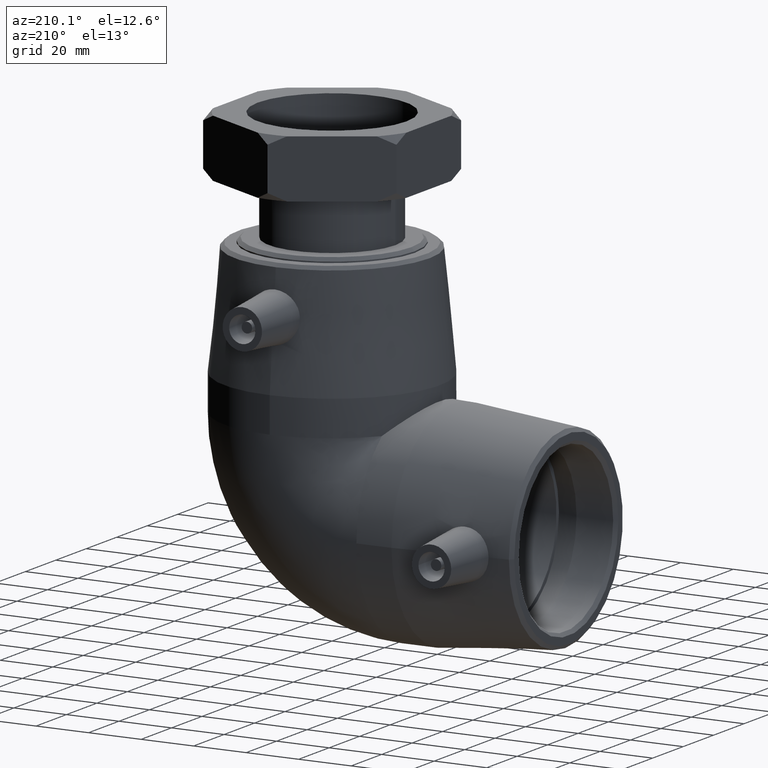
[diagram: clean part render]
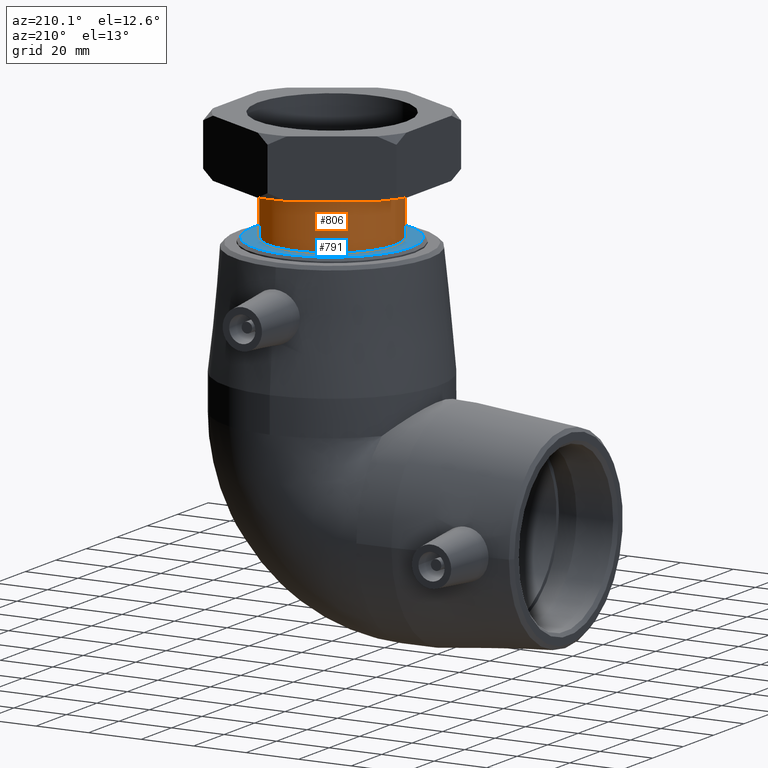
[diagram: same view with the hole feature highlighted: cylindrical wall and planar end face, labeled with their STEP entity ids]
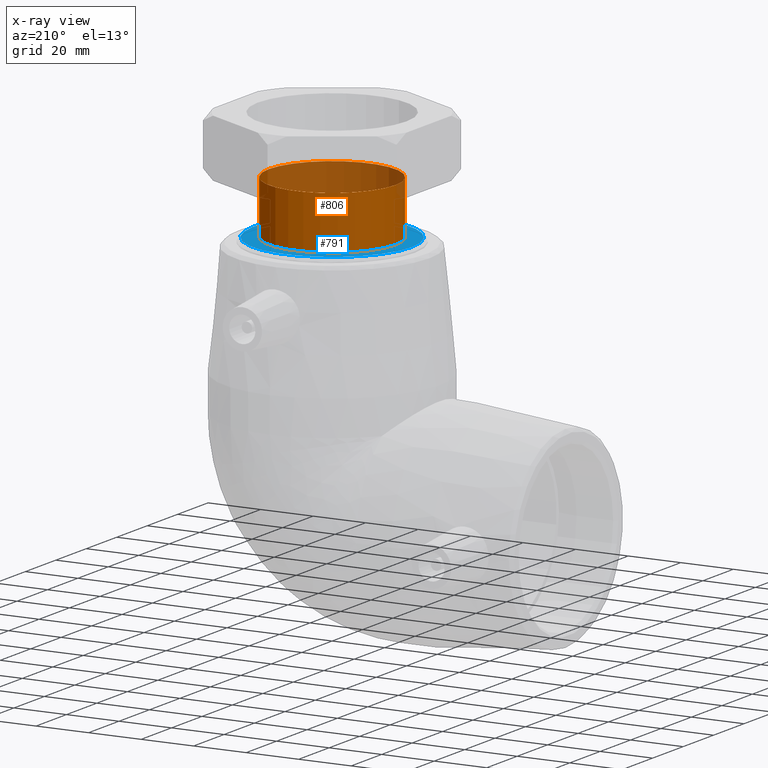
[diagram: x-ray of the same camera — body ghosted, the hole faces saturated]
A machine part, auxiliary view. The highlighted faces form one hole feature of diameter 48.1576 mm: the cylindrical wall (entity #806, orange) and its adjacent planar end face (entity #791, blue) — they share a circular edge in the B-rep.
The next image is the same camera in x-ray (body ghosted, the hole faces saturated) — the bore reads through the body.
Wall:
#86=CYLINDRICAL_SURFACE('',#907,24.0788);
#141=FACE_BOUND('',#285,.T.);
#199=FACE_OUTER_BOUND('',#284,.T.);
#284=EDGE_LOOP('',(#702));
#285=EDGE_LOOP('',(#703));
#338=CIRCLE('',#868,24.0788);
#343=CIRCLE('',#877,24.0788);
#414=VERTEX_POINT('',#1357);
#419=VERTEX_POINT('',#1371);
#510=EDGE_CURVE('',#414,#414,#338,.T.);
#515=EDGE_CURVE('',#419,#419,#343,.T.);
#702=ORIENTED_EDGE('',*,*,#515,.F.);
#703=ORIENTED_EDGE('',*,*,#510,.T.);
#806=ADVANCED_FACE('',(#199,#141),#86,.T.);
#868=AXIS2_PLACEMENT_3D('',#1358,#1038,#1039);
#877=AXIS2_PLACEMENT_3D('',#1372,#1056,#1057);
#907=AXIS2_PLACEMENT_3D('',#1487,#1116,#1117);
#1038=DIRECTION('center_axis',(-2.46716227694479E-16,0.,-1.));
#1039=DIRECTION('ref_axis',(1.,0.,-2.46716227694479E-16));
#1056=DIRECTION('center_axis',(-2.46716227694479E-16,0.,-1.));
#1057=DIRECTION('ref_axis',(1.,0.,-2.46716227694479E-16));
#1116=DIRECTION('center_axis',(-2.46716227694479E-16,0.,-1.));
#1117=DIRECTION('ref_axis',(-1.,0.,1.66187200584017E-16));
#1357=CARTESIAN_POINT('',(-24.0788,0.,112.));
#1358=CARTESIAN_POINT('Origin',(2.76322175017817E-14,0.,112.));
#1371=CARTESIAN_POINT('',(-24.0788,0.,91.76));
#1372=CARTESIAN_POINT('Origin',(2.26386810532454E-14,0.,91.76));
#1487=CARTESIAN_POINT('Origin',(2.51354492775135E-14,0.,101.88));
End face:
#103=PLANE('',#876);
#124=FACE_BOUND('',#253,.T.);
#184=FACE_OUTER_BOUND('',#252,.T.);
#252=EDGE_LOOP('',(#670));
#253=EDGE_LOOP('',(#671));
#340=CIRCLE('',#872,30.24);
#343=CIRCLE('',#877,24.0788);
#416=VERTEX_POINT('',#1363);
#419=VERTEX_POINT('',#1371);
#512=EDGE_CURVE('',#416,#416,#340,.T.);
#515=EDGE_CURVE('',#419,#419,#343,.T.);
#670=ORIENTED_EDGE('',*,*,#512,.F.);
#671=ORIENTED_EDGE('',*,*,#515,.T.);
#791=ADVANCED_FACE('',(#184,#124),#103,.T.);
#872=AXIS2_PLACEMENT_3D('',#1364,#1046,#1047);
#876=AXIS2_PLACEMENT_3D('',#1370,#1054,#1055);
#877=AXIS2_PLACEMENT_3D('',#1372,#1056,#1057);
#1046=DIRECTION('center_axis',(-2.46716227694479E-16,0.,-1.));
#1047=DIRECTION('ref_axis',(1.,0.,-2.46716227694479E-16));
#1054=DIRECTION('center_axis',(2.46716227694479E-16,0.,1.));
#1055=DIRECTION('ref_axis',(1.,0.,0.));
#1056=DIRECTION('center_axis',(-2.46716227694479E-16,0.,-1.));
#1057=DIRECTION('ref_axis',(1.,0.,-2.46716227694479E-16));
#1363=CARTESIAN_POINT('',(-30.24,3.7033319206216E-15,91.76));
#1364=CARTESIAN_POINT('Origin',(2.26386810532454E-14,0.,91.76));
#1370=CARTESIAN_POINT('Origin',(-31.5,0.,91.76));
#1371=CARTESIAN_POINT('',(-24.0788,0.,91.76));
#1372=CARTESIAN_POINT('Origin',(2.26386810532454E-14,0.,91.76));